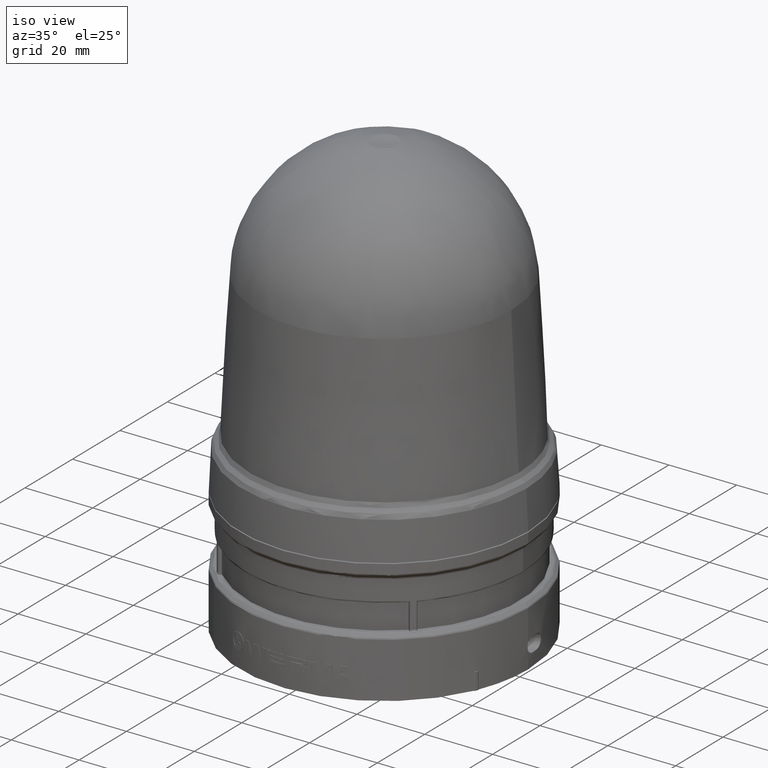
[diagram: clean part render]
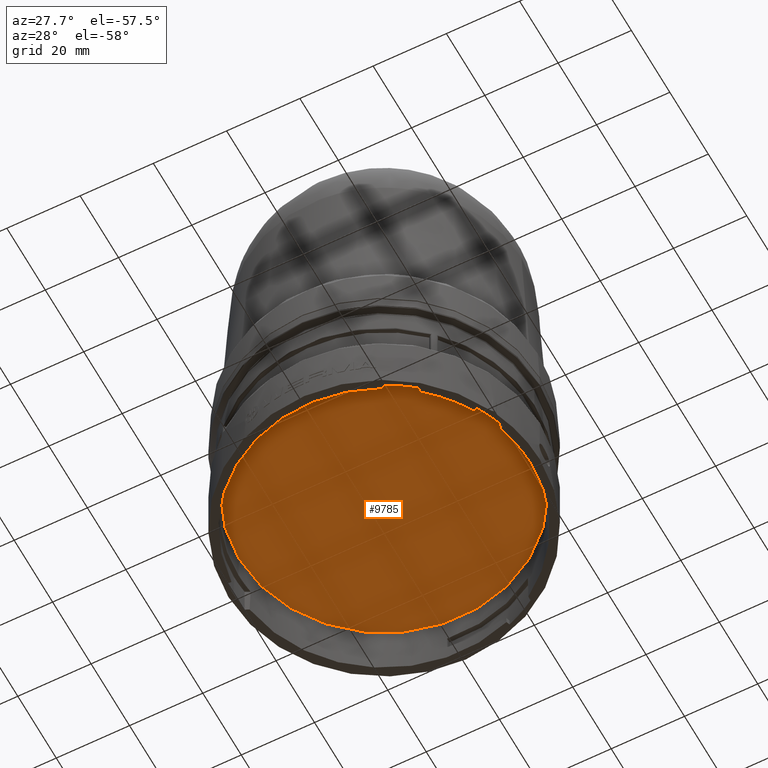
[diagram: tour spotlight — one face highlighted and labeled with its STEP entity id]
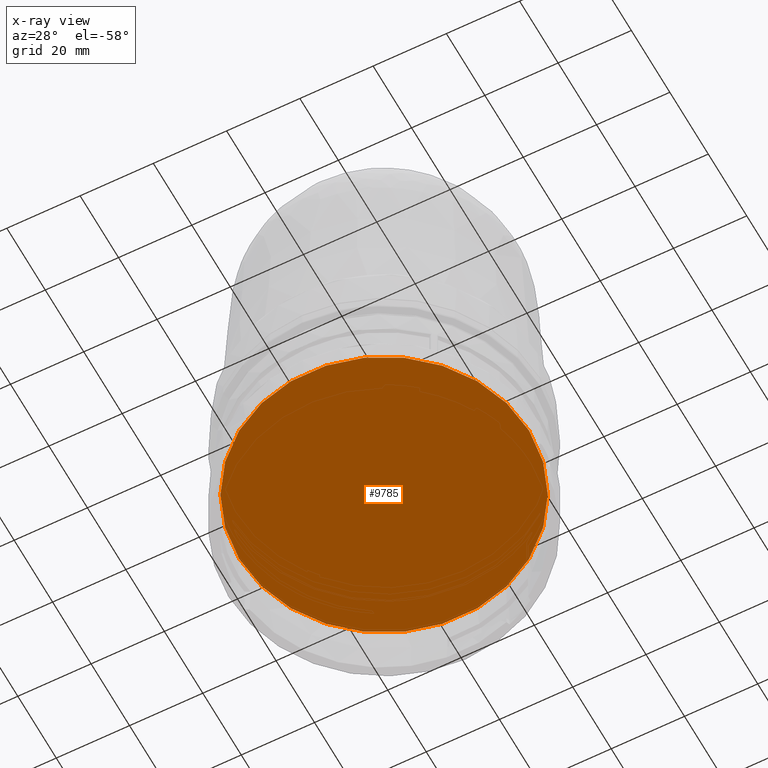
[diagram: x-ray of the same camera — body ghosted, this tour face saturated]
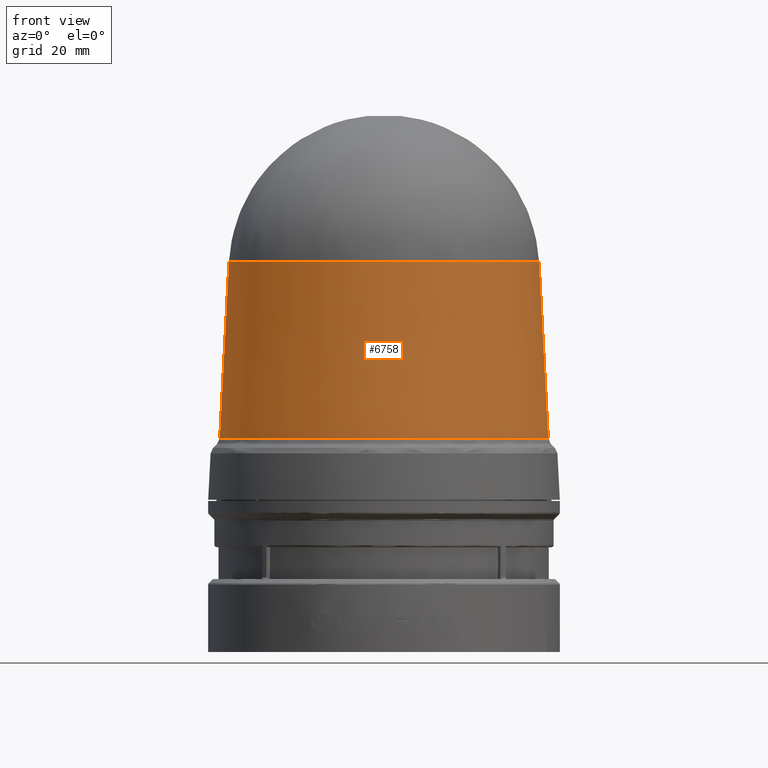
[diagram: tour spotlight — one face highlighted and labeled with its STEP entity id]
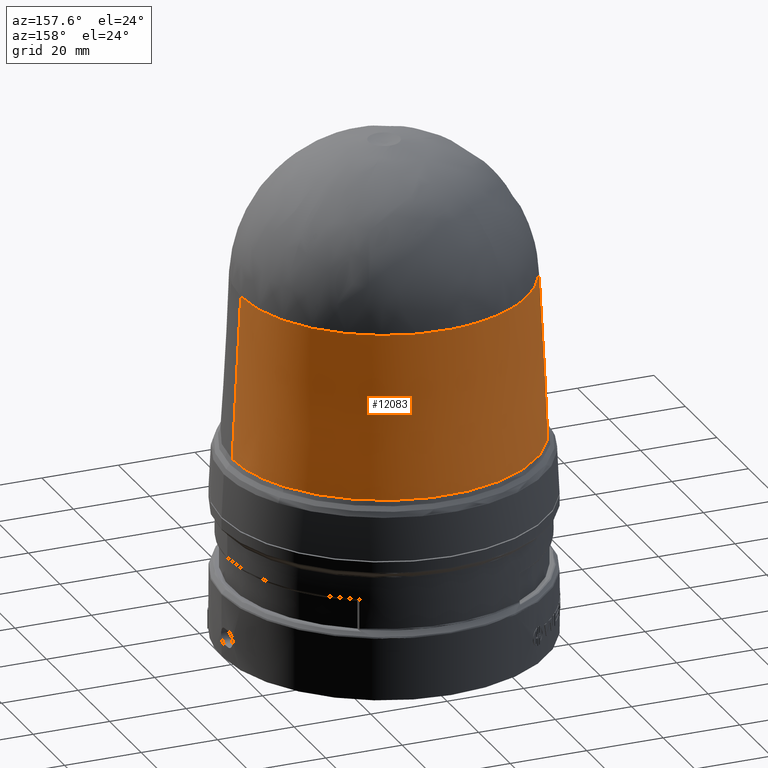
[diagram: tour spotlight — one face highlighted and labeled with its STEP entity id]
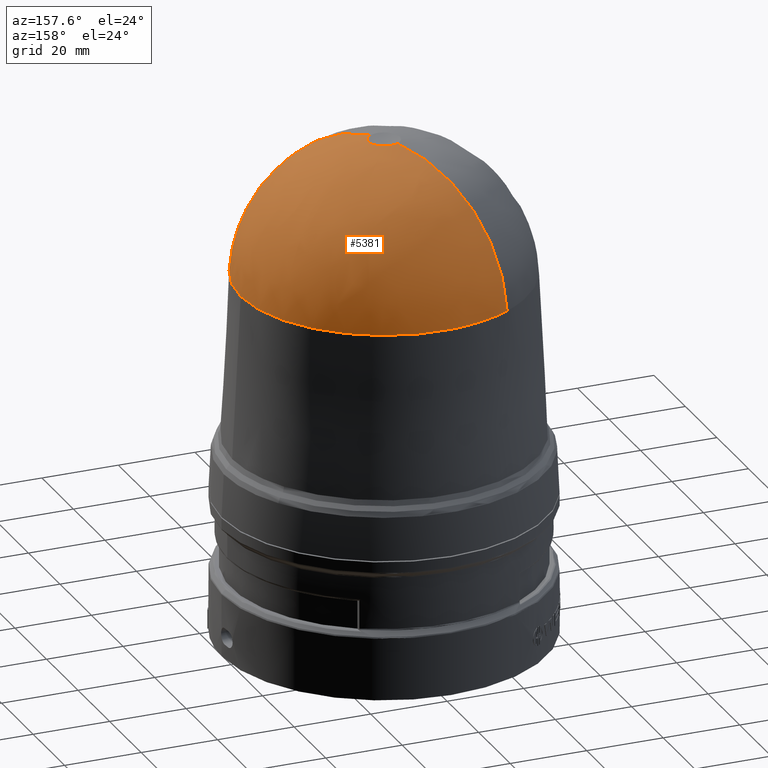
[diagram: tour spotlight — one face highlighted and labeled with its STEP entity id]
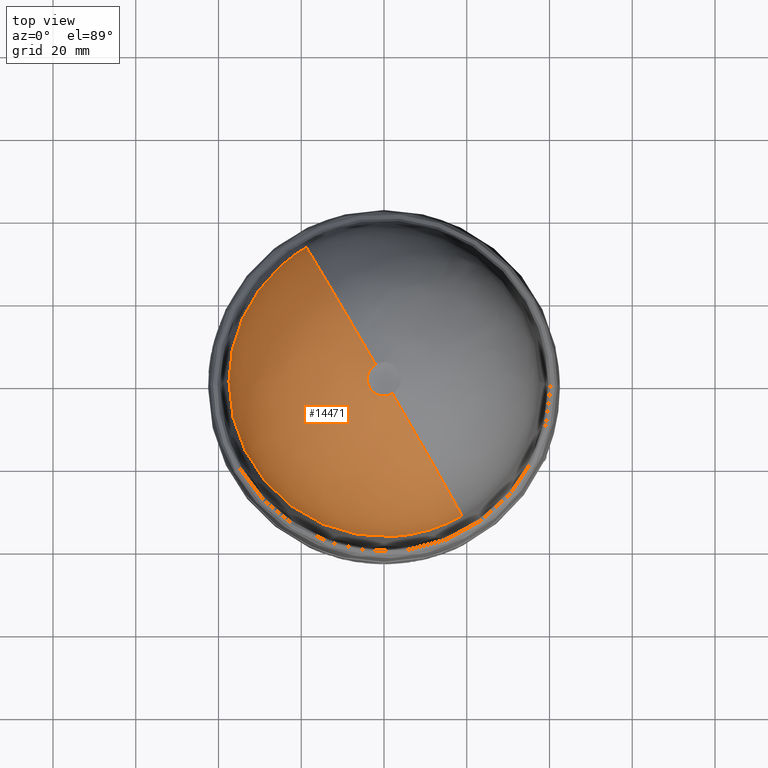
[diagram: tour spotlight — one face highlighted and labeled with its STEP entity id]
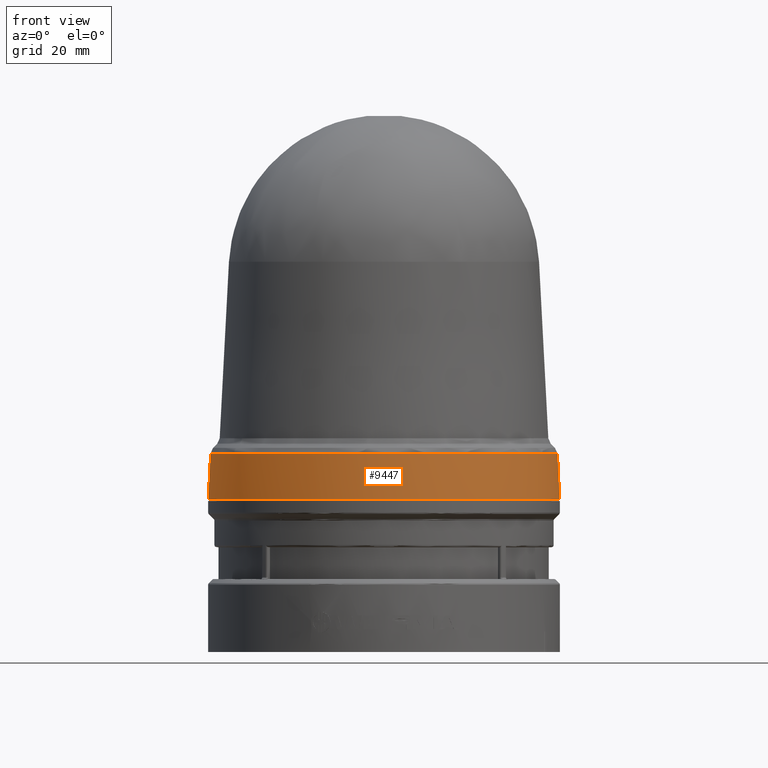
[diagram: tour spotlight — one face highlighted and labeled with its STEP entity id]
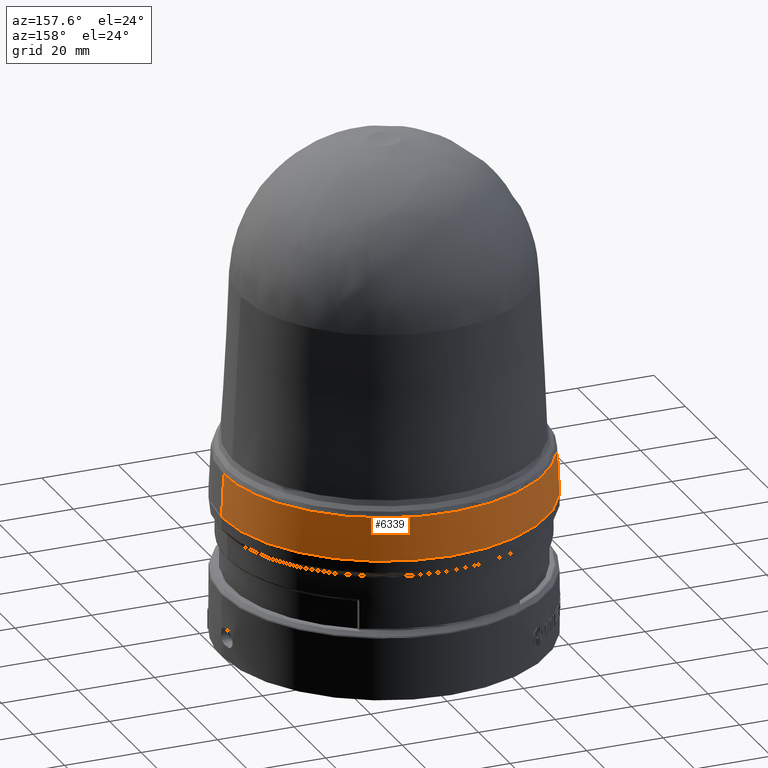
[diagram: tour spotlight — one face highlighted and labeled with its STEP entity id]
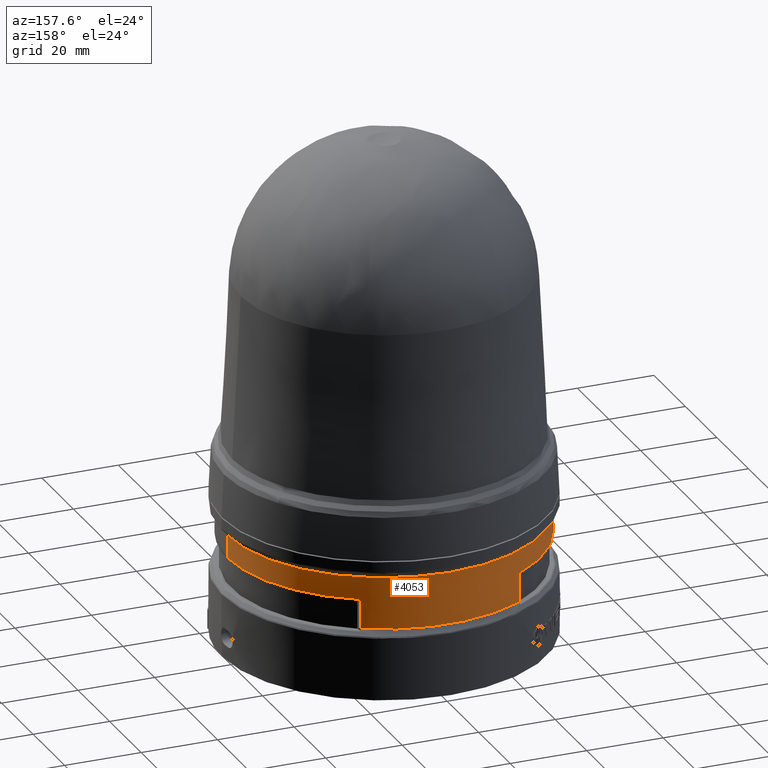
[diagram: tour spotlight — one face highlighted and labeled with its STEP entity id]
A machine part: a face-by-face anatomy tour. The part has 358 B-rep faces; the first image is the clean iso view, then the 8 largest visible faces are spotlighted one at a time (largest first), each with its STEP entity span.

Face 1 — auxiliary view, entity #9785. An x-ray twin of the same camera follows (body ghosted, this face saturated) — the face is partly hidden behind the body. In plain terms, the highlighted planar face has unit normal (0, -0, -1).
Definition (entity closure, byte-faithful):
#1344 = DIRECTION ( 'NONE',  ( 1.000000000000000000, 0.0000000000000000000, 0.0000000000000000000 ) ) ;
#2258 = EDGE_LOOP ( 'NONE', ( #14175, #6306 ) ) ;
#2262 = DIRECTION ( 'NONE',  ( 3.978616085879489650E-16, -1.210841881767389966E-31, -1.000000000000000000 ) ) ;
#2293 = DIRECTION ( 'NONE',  ( 0.0000000000000000000, 0.0000000000000000000, 1.000000000000000000 ) ) ;
#2439 = EDGE_CURVE ( 'NONE', #9675, #11944, #7553, .T. ) ;
#2452 = CARTESIAN_POINT ( 'NONE',  ( -1.558308080901299242, 1.908377003361230864E-16, 0.5905511811023621549 ) ) ;
#3549 = DIRECTION ( 'NONE',  ( 0.0000000000000000000, 0.0000000000000000000, 1.000000000000000000 ) ) ;
#3585 = CARTESIAN_POINT ( 'NONE',  ( 0.03543307086614161383, 1.338582677165354395, 0.5905511811023621549 ) ) ;
#3697 = EDGE_CURVE ( 'NONE', #11944, #9675, #6114, .T. ) ;
#6114 = CIRCLE ( 'NONE', #11616, 1.558308080901299242 ) ;
#6306 = ORIENTED_EDGE ( 'NONE', *, *, #3697, .F. ) ;
#6522 = AXIS2_PLACEMENT_3D ( 'NONE', #3585, #2262, #9466 ) ;
#7055 = CARTESIAN_POINT ( 'NONE',  ( 1.558308080901299242, 0.0000000000000000000, 0.5905511811023621549 ) ) ;
#7553 = CIRCLE ( 'NONE', #8803, 1.558308080901299242 ) ;
#8024 = CARTESIAN_POINT ( 'NONE',  ( 1.092739197465704702E-17, 0.0000000000000000000, 0.5905511811023621549 ) ) ;
#8803 = AXIS2_PLACEMENT_3D ( 'NONE', #15422, #2293, #1344 ) ;
#9466 = DIRECTION ( 'NONE',  ( -1.000000000000000000, 0.0000000000000000000, -3.978616085879489650E-16 ) ) ;
#9623 = FACE_OUTER_BOUND ( 'NONE', #2258, .T. ) ;
#9675 = VERTEX_POINT ( 'NONE', #7055 ) ;
#9785 = ADVANCED_FACE ( 'NONE', ( #9623 ), #10645, .T. ) ;
#10645 = PLANE ( 'NONE',  #6522 ) ;
#11616 = AXIS2_PLACEMENT_3D ( 'NONE', #8024, #3549, #13959 ) ;
#11944 = VERTEX_POINT ( 'NONE', #2452 ) ;
#13959 = DIRECTION ( 'NONE',  ( 1.000000000000000000, 0.0000000000000000000, 0.0000000000000000000 ) ) ;
#14175 = ORIENTED_EDGE ( 'NONE', *, *, #2439, .F. ) ;
#15422 = CARTESIAN_POINT ( 'NONE',  ( 1.092739197465704702E-17, 0.0000000000000000000, 0.5905511811023621549 ) ) ;

Face 2 — front view, entity #6758. In plain terms, the highlighted conical surface has half-angle 3 deg.
Definition (entity closure, byte-faithful):
#60 = VERTEX_POINT ( 'NONE', #8692 ) ;
#482 = DIRECTION ( 'NONE',  ( -0.0000000000000000000, -0.0000000000000000000, 1.000000000000000000 ) ) ;
#598 = CONICAL_SURFACE ( 'NONE', #10614, 1.563671779580842358, 0.05235987755983015357 ) ;
#727 = VECTOR ( 'NONE', #14472, 39.37007874015748854 ) ;
#1020 = DIRECTION ( 'NONE',  ( 0.05233595624294409832, 6.409306129323742530E-18, -0.9986295347545738332 ) ) ;
#1576 = EDGE_CURVE ( 'NONE', #11740, #6636, #11835, .T. ) ;
#1653 = DIRECTION ( 'NONE',  ( -0.0000000000000000000, 0.0000000000000000000, -1.000000000000000000 ) ) ;
#1723 = AXIS2_PLACEMENT_3D ( 'NONE', #12376, #1653, #2892 ) ;
#1724 = CARTESIAN_POINT ( 'NONE',  ( 0.0000000000000000000, 0.0000000000000000000, 2.034659038976424306 ) ) ;
#1786 = AXIS2_PLACEMENT_3D ( 'NONE', #2142, #5501, #10277 ) ;
#1838 = VERTEX_POINT ( 'NONE', #7422 ) ;
#2142 = CARTESIAN_POINT ( 'NONE',  ( 0.0000000000000000000, 0.0000000000000000000, 3.713785851024027362 ) ) ;
#2298 = CARTESIAN_POINT ( 'NONE',  ( 0.0000000000000000000, 0.0000000000000000000, 2.034659038976424306 ) ) ;
#2402 = EDGE_CURVE ( 'NONE', #15373, #11740, #6049, .T. ) ;
#2776 = VERTEX_POINT ( 'NONE', #9614 ) ;
#2892 = DIRECTION ( 'NONE',  ( -1.000000000000000000, 0.0000000000000000000, 0.0000000000000000000 ) ) ;
#3876 = VECTOR ( 'NONE', #1020, 39.37007874015748854 ) ;
#3913 = DIRECTION ( 'NONE',  ( -1.000000000000000000, 0.0000000000000000000, 0.0000000000000000000 ) ) ;
#4617 = LINE ( 'NONE', #13920, #3876 ) ;
#5086 = DIRECTION ( 'NONE',  ( -0.0000000000000000000, 0.0000000000000000000, -1.000000000000000000 ) ) ;
#5483 = AXIS2_PLACEMENT_3D ( 'NONE', #1724, #482, #6585 ) ;
#5501 = DIRECTION ( 'NONE',  ( -0.0000000000000000000, 0.0000000000000000000, -1.000000000000000000 ) ) ;
#5883 = AXIS2_PLACEMENT_3D ( 'NONE', #2298, #6134, #8486 ) ;
#6049 = CIRCLE ( 'NONE', #1786, 1.475672472226814635 ) ;
#6134 = DIRECTION ( 'NONE',  ( -0.0000000000000000000, -0.0000000000000000000, 1.000000000000000000 ) ) ;
#6399 = EDGE_LOOP ( 'NONE', ( #6577, #8781, #6740, #6853, #11423, #12673 ) ) ;
#6577 = ORIENTED_EDGE ( 'NONE', *, *, #7685, .F. ) ;
#6585 = DIRECTION ( 'NONE',  ( 0.5014125330541008285, -0.8652083400524236412, 1.048243510948274123E-15 ) ) ;
#6636 = VERTEX_POINT ( 'NONE', #14547 ) ;
#6740 = ORIENTED_EDGE ( 'NONE', *, *, #2402, .T. ) ;
#6758 = ADVANCED_FACE ( 'NONE', ( #8998 ), #598, .T. ) ;
#6853 = ORIENTED_EDGE ( 'NONE', *, *, #1576, .T. ) ;
#7422 = CARTESIAN_POINT ( 'NONE',  ( -1.352901864797958043, -0.7840446278648492973, 2.034659038976424306 ) ) ;
#7685 = EDGE_CURVE ( 'NONE', #2776, #60, #4617, .T. ) ;
#7979 = CIRCLE ( 'NONE', #1723, 1.475672472226814635 ) ;
#8486 = DIRECTION ( 'NONE',  ( 0.5014125330541039371, -0.8652083400524217538, 1.048243510948274123E-15 ) ) ;
#8692 = CARTESIAN_POINT ( 'NONE',  ( 1.563671779580842358, 1.914945639780724310E-16, 2.034659038976424306 ) ) ;
#8781 = ORIENTED_EDGE ( 'NONE', *, *, #13448, .T. ) ;
#8998 = FACE_OUTER_BOUND ( 'NONE', #6399, .T. ) ;
#9053 = EDGE_CURVE ( 'NONE', #1838, #60, #10868, .T. ) ;
#9614 = CARTESIAN_POINT ( 'NONE',  ( 1.475672472226814635, 1.861061604741577469E-16, 3.713785851024027362 ) ) ;
#10277 = DIRECTION ( 'NONE',  ( -1.000000000000000000, 0.0000000000000000000, 0.0000000000000000000 ) ) ;
#10614 = AXIS2_PLACEMENT_3D ( 'NONE', #13758, #5086, #3913 ) ;
#10809 = CARTESIAN_POINT ( 'NONE',  ( -1.563671779580842358, 0.0000000000000000000, 2.034659038976426082 ) ) ;
#10868 = CIRCLE ( 'NONE', #5883, 1.563671779580842358 ) ;
#11423 = ORIENTED_EDGE ( 'NONE', *, *, #14225, .T. ) ;
#11740 = VERTEX_POINT ( 'NONE', #15153 ) ;
#11835 = LINE ( 'NONE', #10809, #727 ) ;
#12376 = CARTESIAN_POINT ( 'NONE',  ( 0.0000000000000000000, 0.0000000000000000000, 3.713785851024027362 ) ) ;
#12673 = ORIENTED_EDGE ( 'NONE', *, *, #9053, .T. ) ;
#13448 = EDGE_CURVE ( 'NONE', #2776, #15373, #7979, .T. ) ;
#13682 = CARTESIAN_POINT ( 'NONE',  ( 0.7399206722574594997, -1.276764130156416988, 3.713785851024027362 ) ) ;
#13758 = CARTESIAN_POINT ( 'NONE',  ( 0.0000000000000000000, 0.0000000000000000000, 2.034659038976426082 ) ) ;
#13920 = CARTESIAN_POINT ( 'NONE',  ( 1.563671779580842358, 1.914945639780724310E-16, 2.034659038976426082 ) ) ;
#14225 = EDGE_CURVE ( 'NONE', #6636, #1838, #14963, .T. ) ;
#14472 = DIRECTION ( 'NONE',  ( -0.05233595624294409832, 0.0000000000000000000, -0.9986295347545738332 ) ) ;
#14547 = CARTESIAN_POINT ( 'NONE',  ( -1.563671779580842358, 0.0000000000000000000, 2.034659038976424306 ) ) ;
#14963 = CIRCLE ( 'NONE', #5483, 1.563671779580842358 ) ;
#15153 = CARTESIAN_POINT ( 'NONE',  ( -1.475672472226814635, 0.0000000000000000000, 3.713785851024027362 ) ) ;
#15373 = VERTEX_POINT ( 'NONE', #13682 ) ;

Face 3 — auxiliary view, entity #12083. In plain terms, the highlighted conical surface has half-angle 3 deg.
Definition (entity closure, byte-faithful):
#60 = VERTEX_POINT ( 'NONE', #8692 ) ;
#319 = CARTESIAN_POINT ( 'NONE',  ( -0.7399206722574594997, 1.276764130156416988, 3.713785851024027362 ) ) ;
#568 = DIRECTION ( 'NONE',  ( -0.0000000000000000000, 0.0000000000000000000, -1.000000000000000000 ) ) ;
#727 = VECTOR ( 'NONE', #14472, 39.37007874015748854 ) ;
#742 = ORIENTED_EDGE ( 'NONE', *, *, #7685, .T. ) ;
#1020 = DIRECTION ( 'NONE',  ( 0.05233595624294409832, 6.409306129323742530E-18, -0.9986295347545738332 ) ) ;
#1417 = EDGE_CURVE ( 'NONE', #60, #2387, #11973, .T. ) ;
#1576 = EDGE_CURVE ( 'NONE', #11740, #6636, #11835, .T. ) ;
#2131 = DIRECTION ( 'NONE',  ( 0.5014125330541039371, -0.8652083400524217538, 1.048243510948274123E-15 ) ) ;
#2154 = DIRECTION ( 'NONE',  ( -0.0000000000000000000, 0.0000000000000000000, -1.000000000000000000 ) ) ;
#2387 = VERTEX_POINT ( 'NONE', #14030 ) ;
#2776 = VERTEX_POINT ( 'NONE', #9614 ) ;
#3876 = VECTOR ( 'NONE', #1020, 39.37007874015748854 ) ;
#4176 = CARTESIAN_POINT ( 'NONE',  ( 0.0000000000000000000, 0.0000000000000000000, 3.713785851024027362 ) ) ;
#4617 = LINE ( 'NONE', #13920, #3876 ) ;
#4893 = ORIENTED_EDGE ( 'NONE', *, *, #1417, .T. ) ;
#5110 = CIRCLE ( 'NONE', #11620, 1.475672472226814635 ) ;
#5231 = AXIS2_PLACEMENT_3D ( 'NONE', #9174, #10266, #2131 ) ;
#5633 = CIRCLE ( 'NONE', #10640, 1.475672472226814635 ) ;
#5989 = FACE_OUTER_BOUND ( 'NONE', #6767, .T. ) ;
#6124 = CIRCLE ( 'NONE', #10634, 1.563671779580842358 ) ;
#6222 = DIRECTION ( 'NONE',  ( -0.0000000000000000000, 0.0000000000000000000, -1.000000000000000000 ) ) ;
#6291 = CARTESIAN_POINT ( 'NONE',  ( 0.0000000000000000000, 0.0000000000000000000, 2.034659038976424306 ) ) ;
#6636 = VERTEX_POINT ( 'NONE', #14547 ) ;
#6767 = EDGE_LOOP ( 'NONE', ( #8158, #9645, #742, #4893, #7367, #7147 ) ) ;
#6942 = DIRECTION ( 'NONE',  ( -1.000000000000000000, 0.0000000000000000000, 0.0000000000000000000 ) ) ;
#7147 = ORIENTED_EDGE ( 'NONE', *, *, #1576, .F. ) ;
#7367 = ORIENTED_EDGE ( 'NONE', *, *, #9251, .T. ) ;
#7520 = EDGE_CURVE ( 'NONE', #11740, #15455, #5633, .T. ) ;
#7685 = EDGE_CURVE ( 'NONE', #2776, #60, #4617, .T. ) ;
#8158 = ORIENTED_EDGE ( 'NONE', *, *, #7520, .T. ) ;
#8502 = EDGE_CURVE ( 'NONE', #15455, #2776, #5110, .T. ) ;
#8692 = CARTESIAN_POINT ( 'NONE',  ( 1.563671779580842358, 1.914945639780724310E-16, 2.034659038976424306 ) ) ;
#8879 = DIRECTION ( 'NONE',  ( -1.000000000000000000, 0.0000000000000000000, 0.0000000000000000000 ) ) ;
#9174 = CARTESIAN_POINT ( 'NONE',  ( 0.0000000000000000000, 0.0000000000000000000, 2.034659038976424306 ) ) ;
#9251 = EDGE_CURVE ( 'NONE', #2387, #6636, #6124, .T. ) ;
#9614 = CARTESIAN_POINT ( 'NONE',  ( 1.475672472226814635, 1.861061604741577469E-16, 3.713785851024027362 ) ) ;
#9645 = ORIENTED_EDGE ( 'NONE', *, *, #8502, .T. ) ;
#9809 = DIRECTION ( 'NONE',  ( 0.5014125330541039371, -0.8652083400524217538, 1.048243510948274123E-15 ) ) ;
#10035 = DIRECTION ( 'NONE',  ( -0.0000000000000000000, -0.0000000000000000000, 1.000000000000000000 ) ) ;
#10266 = DIRECTION ( 'NONE',  ( -0.0000000000000000000, -0.0000000000000000000, 1.000000000000000000 ) ) ;
#10634 = AXIS2_PLACEMENT_3D ( 'NONE', #6291, #10035, #9809 ) ;
#10640 = AXIS2_PLACEMENT_3D ( 'NONE', #4176, #2154, #6942 ) ;
#10809 = CARTESIAN_POINT ( 'NONE',  ( -1.563671779580842358, 0.0000000000000000000, 2.034659038976426082 ) ) ;
#11620 = AXIS2_PLACEMENT_3D ( 'NONE', #12462, #6222, #8879 ) ;
#11740 = VERTEX_POINT ( 'NONE', #15153 ) ;
#11835 = LINE ( 'NONE', #10809, #727 ) ;
#11973 = CIRCLE ( 'NONE', #5231, 1.563671779580842358 ) ;
#12083 = ADVANCED_FACE ( 'NONE', ( #5989 ), #13446, .T. ) ;
#12462 = CARTESIAN_POINT ( 'NONE',  ( 0.0000000000000000000, 0.0000000000000000000, 3.713785851024027362 ) ) ;
#13446 = CONICAL_SURFACE ( 'NONE', #14926, 1.563671779580842358, 0.05235987755983015357 ) ;
#13556 = DIRECTION ( 'NONE',  ( -1.000000000000000000, 0.0000000000000000000, 0.0000000000000000000 ) ) ;
#13920 = CARTESIAN_POINT ( 'NONE',  ( 1.563671779580842358, 1.914945639780724310E-16, 2.034659038976426082 ) ) ;
#14030 = CARTESIAN_POINT ( 'NONE',  ( 1.352901864797958043, 0.7840446278648494083, 2.034659038976424306 ) ) ;
#14472 = DIRECTION ( 'NONE',  ( -0.05233595624294409832, 0.0000000000000000000, -0.9986295347545738332 ) ) ;
#14547 = CARTESIAN_POINT ( 'NONE',  ( -1.563671779580842358, 0.0000000000000000000, 2.034659038976424306 ) ) ;
#14726 = CARTESIAN_POINT ( 'NONE',  ( 0.0000000000000000000, 0.0000000000000000000, 2.034659038976426082 ) ) ;
#14926 = AXIS2_PLACEMENT_3D ( 'NONE', #14726, #568, #13556 ) ;
#15153 = CARTESIAN_POINT ( 'NONE',  ( -1.475672472226814635, 0.0000000000000000000, 3.713785851024027362 ) ) ;
#15455 = VERTEX_POINT ( 'NONE', #319 ) ;

Face 4 — auxiliary view, entity #5381. In plain terms, the highlighted face is a freeform B-spline surface patch.
Definition (entity closure, byte-faithful):
#223 = CARTESIAN_POINT ( 'NONE',  ( 0.1335874368738168283, -0.08909182799345709280, 5.101524661840184827 ) ) ;
#319 = CARTESIAN_POINT ( 'NONE',  ( -0.7399206722574594997, 1.276764130156416988, 3.713785851024027362 ) ) ;
#452 = CARTESIAN_POINT ( 'NONE',  ( 0.1605735896362889548, 0.0001998208496567846211, 5.101524661840184827 ) ) ;
#613 = CIRCLE ( 'NONE', #13109, 1.477919648963614385 ) ;
#1025 = CARTESIAN_POINT ( 'NONE',  ( 0.7865240245334753633, -1.251186579525271680, 3.665631362536418081 ) ) ;
#1167 = CARTESIAN_POINT ( 'NONE',  ( -6.753429739070602219E-05, 0.1605761452657249178, 5.101524661840185715 ) ) ;
#1596 = CIRCLE ( 'NONE', #9884, 1.477919648963614385 ) ;
#1653 = DIRECTION ( 'NONE',  ( -0.0000000000000000000, 0.0000000000000000000, -1.000000000000000000 ) ) ;
#1723 = AXIS2_PLACEMENT_3D ( 'NONE', #12376, #1653, #2892 ) ;
#1960 =( BOUNDED_SURFACE ( )  B_SPLINE_SURFACE ( 3, 3, ( 
 ( #6910, #8070, #15173, #3285 ),
 ( #8230, #14005, #12840, #7065 ),
 ( #10335, #5880, #13002, #5726 ),
 ( #9166, #12759, #1025, #5560 ) ),
 .UNSPECIFIED., .F., .F., .T. ) 
 B_SPLINE_SURFACE_WITH_KNOTS ( ( 4, 4 ),
 ( 4, 4 ),
 ( 0.0000000000000000000, 1.000000000000000000 ),
 ( 0.0000000000000000000, 1.000000000000000000 ),
 .UNSPECIFIED. ) 
 GEOMETRIC_REPRESENTATION_ITEM ( )  RATIONAL_B_SPLINE_SURFACE ( (
 ( 1.000000000000000000, 0.8154240588738161932, 0.8154240588738161932, 1.000000000000000000),
 ( 0.3579707367587954270, 0.2918979511259073845, 0.2918979511259073845, 0.3579707367587954270),
 ( 0.3579707367587954270, 0.2918979511259073845, 0.2918979511259073845, 0.3579707367587954270),
 ( 1.000000000000000000, 0.8154240588738161932, 0.8154240588738161932, 1.000000000000000000) ) ) 
 REPRESENTATION_ITEM ( '' )  SURFACE ( )  );
#2190 = CARTESIAN_POINT ( 'NONE',  ( -0.07118422316027021857, 0.1439406593479357344, 5.101524661840183050 ) ) ;
#2375 = CARTESIAN_POINT ( 'NONE',  ( 0.0000000000000000000, 0.0000000000000000000, 3.632316571508826808 ) ) ;
#2565 = CARTESIAN_POINT ( 'NONE',  ( 0.1575040759130816315, -0.03123542254685786682, 5.101524661840184827 ) ) ;
#2645 = CARTESIAN_POINT ( 'NONE',  ( 0.08034199233013633590, -0.1386334749115154530, 5.101524661840183938 ) ) ;
#2776 = VERTEX_POINT ( 'NONE', #9614 ) ;
#2785 = CARTESIAN_POINT ( 'NONE',  ( 0.1439904568381328576, 0.07108043574247831231, 5.101524661840183050 ) ) ;
#2861 = CARTESIAN_POINT ( 'NONE',  ( 0.1521157557725097142, -0.05141966935592569288, 5.101524661840183050 ) ) ;
#2892 = DIRECTION ( 'NONE',  ( -1.000000000000000000, 0.0000000000000000000, 0.0000000000000000000 ) ) ;
#3204 = FACE_OUTER_BOUND ( 'NONE', #5895, .T. ) ;
#3285 = CARTESIAN_POINT ( 'NONE',  ( -0.6933348365070033381, 1.305192331271466388, 3.634820901497947343 ) ) ;
#3514 = CARTESIAN_POINT ( 'NONE',  ( -0.04158516537283163395, 0.1551015468564019562, 5.101524661840183938 ) ) ;
#3534 = CARTESIAN_POINT ( 'NONE',  ( -0.08034199233101341209, 0.1386334749110069431, 5.101524661840183938 ) ) ;
#3691 = EDGE_CURVE ( 'NONE', #13272, #15373, #613, .T. ) ;
#3719 = ORIENTED_EDGE ( 'NONE', *, *, #3691, .T. ) ;
#3743 = CARTESIAN_POINT ( 'NONE',  ( 0.08906134181568881036, 0.1336141393209111794, 5.101524661840185715 ) ) ;
#3821 = CARTESIAN_POINT ( 'NONE',  ( 0.1484564492882169129, -0.06120537906545074625, 5.101524661840184827 ) ) ;
#3822 = DIRECTION ( 'NONE',  ( -0.5014125330541038261, 0.8652083400524217538, 0.0000000000000000000 ) ) ;
#4044 = CARTESIAN_POINT ( 'NONE',  ( 0.1574694936362039110, 0.03142356822238222269, 5.101524661840184827 ) ) ;
#4761 = CARTESIAN_POINT ( 'NONE',  ( 0.06142297409386508061, 0.1483600975610369910, 5.101524661840183938 ) ) ;
#5110 = CIRCLE ( 'NONE', #11620, 1.475672472226814635 ) ;
#5224 = CARTESIAN_POINT ( 'NONE',  ( 0.09787007582820322904, -0.1273040767253774963, 5.101524661840188379 ) ) ;
#5381 = ADVANCED_FACE ( 'NONE', ( #3204 ), #1960, .T. ) ;
#5560 = CARTESIAN_POINT ( 'NONE',  ( 0.7877475990843612053, -1.250477483708068549, 3.634820901497947787 ) ) ;
#5726 = CARTESIAN_POINT ( 'NONE',  ( 3.112428229567200777, 0.2142247833972087956, 3.760850638755021791 ) ) ;
#5880 = CARTESIAN_POINT ( 'NONE',  ( 2.059201229991057591, -0.3961498434891331244, 6.435578721853982387 ) ) ;
#5895 = EDGE_LOOP ( 'NONE', ( #7677, #12162, #9818, #3719, #5999 ) ) ;
#5945 = CARTESIAN_POINT ( 'NONE',  ( 0.05143388742574824674, 0.1521119074181326858, 5.101524661840184827 ) ) ;
#5999 = ORIENTED_EDGE ( 'NONE', *, *, #13448, .F. ) ;
#6222 = DIRECTION ( 'NONE',  ( -0.0000000000000000000, 0.0000000000000000000, -1.000000000000000000 ) ) ;
#6328 = CARTESIAN_POINT ( 'NONE',  ( 0.1209044632210998088, -0.1056648847959882204, 5.101524661840183938 ) ) ;
#6910 = CARTESIAN_POINT ( 'NONE',  ( -0.7405412177957145792, 1.277834907489748595, 3.686934725441727512 ) ) ;
#7058 = CARTESIAN_POINT ( 'NONE',  ( -0.03135404978745478383, 0.1574798268548385782, 5.101524661840184827 ) ) ;
#7065 = CARTESIAN_POINT ( 'NONE',  ( 1.733281571750370453, 2.594000141684456029, 3.760850638755021791 ) ) ;
#7130 = CARTESIAN_POINT ( 'NONE',  ( -0.01066355502051519535, 0.1602162941108942751, 5.101524661840185715 ) ) ;
#7677 = ORIENTED_EDGE ( 'NONE', *, *, #8502, .F. ) ;
#7808 = EDGE_CURVE ( 'NONE', #15455, #12336, #1596, .T. ) ;
#7979 = CIRCLE ( 'NONE', #1723, 1.475672472226814635 ) ;
#8070 = CARTESIAN_POINT ( 'NONE',  ( -0.7138556837570813052, 1.293299923947405450, 3.686934725441748828 ) ) ;
#8230 = CARTESIAN_POINT ( 'NONE',  ( -0.6895733289100893781, 1.189887679142652921, 6.435578721852891704 ) ) ;
#8377 = CARTESIAN_POINT ( 'NONE',  ( 0.0000000000000000000, 0.0000000000000000000, 3.632316571508826808 ) ) ;
#8502 = EDGE_CURVE ( 'NONE', #15455, #2776, #5110, .T. ) ;
#8604 = CARTESIAN_POINT ( 'NONE',  ( 0.1391480548240751347, -0.08014508469324004014, 5.101524661840184827 ) ) ;
#8682 = CARTESIAN_POINT ( 'NONE',  ( 0.1136834327266383060, -0.1134061586379106201, 5.101524661840188379 ) ) ;
#8756 = CARTESIAN_POINT ( 'NONE',  ( 0.1602221060158062205, 0.01062820820876753114, 5.101524661840184827 ) ) ;
#8879 = DIRECTION ( 'NONE',  ( -1.000000000000000000, 0.0000000000000000000, 0.0000000000000000000 ) ) ;
#9166 = CARTESIAN_POINT ( 'NONE',  ( 0.7405412177956492981, -1.277834907489786342, 3.686934725441727068 ) ) ;
#9396 = CARTESIAN_POINT ( 'NONE',  ( -0.06160064022453402843, 0.1482942242309589764, 5.101524661840185715 ) ) ;
#9547 = CARTESIAN_POINT ( 'NONE',  ( 0.02092373244159112175, 0.1592070991193333118, 5.101524661840183938 ) ) ;
#9614 = CARTESIAN_POINT ( 'NONE',  ( 1.475672472226814635, 1.861061604741577469E-16, 3.713785851024027362 ) ) ;
#9627 = DIRECTION ( 'NONE',  ( 0.8652083400524217538, 0.5014125330541039371, 0.0000000000000000000 ) ) ;
#9697 = CARTESIAN_POINT ( 'NONE',  ( 0.1334117384435282438, 0.08936995049383432421, 5.101524661840184827 ) ) ;
#9775 = CARTESIAN_POINT ( 'NONE',  ( 0.1135021592255398976, 0.1135792108514889209, 5.101524661840184827 ) ) ;
#9818 = ORIENTED_EDGE ( 'NONE', *, *, #10660, .T. ) ;
#9884 = AXIS2_PLACEMENT_3D ( 'NONE', #8377, #9627, #3822 ) ;
#10335 = CARTESIAN_POINT ( 'NONE',  ( 0.6895733289067419447, -1.189887679144593147, 6.435578721852889927 ) ) ;
#10529 = DIRECTION ( 'NONE',  ( 0.8652083400524217538, 0.5014125330541039371, 0.0000000000000000000 ) ) ;
#10660 = EDGE_CURVE ( 'NONE', #12336, #13272, #15313, .T. ) ;
#11620 = AXIS2_PLACEMENT_3D ( 'NONE', #12462, #6222, #8879 ) ;
#11703 = DIRECTION ( 'NONE',  ( -0.5014125330541038261, 0.8652083400524217538, 0.0000000000000000000 ) ) ;
#11820 = CARTESIAN_POINT ( 'NONE',  ( 0.03122271294465147479, 0.1575075215679651863, 5.101524661840184827 ) ) ;
#12123 = CARTESIAN_POINT ( 'NONE',  ( 0.1272752717508936759, 0.09789781656014066857, 5.101524661840184827 ) ) ;
#12162 = ORIENTED_EDGE ( 'NONE', *, *, #7808, .T. ) ;
#12230 = CARTESIAN_POINT ( 'NONE',  ( 0.08034199233013633590, -0.1386334749115154530, 5.101524661840183938 ) ) ;
#12336 = VERTEX_POINT ( 'NONE', #3534 ) ;
#12346 = CARTESIAN_POINT ( 'NONE',  ( 0.1592315060689647455, -0.02071823091058950031, 5.101524661840184827 ) ) ;
#12376 = CARTESIAN_POINT ( 'NONE',  ( 0.0000000000000000000, 0.0000000000000000000, 3.713785851024027362 ) ) ;
#12462 = CARTESIAN_POINT ( 'NONE',  ( 0.0000000000000000000, 0.0000000000000000000, 3.713785851024027362 ) ) ;
#12759 = CARTESIAN_POINT ( 'NONE',  ( 0.7672267518342824610, -1.262369891032129710, 3.686934725441747052 ) ) ;
#12840 = CARTESIAN_POINT ( 'NONE',  ( 1.670481935006218999, 2.557605988418602205, 5.342189315450341702 ) ) ;
#13002 = CARTESIAN_POINT ( 'NONE',  ( 3.049628592823049988, 0.1778306301313553328, 5.342189315450341702 ) ) ;
#13109 = AXIS2_PLACEMENT_3D ( 'NONE', #2375, #10529, #11703 ) ;
#13272 = VERTEX_POINT ( 'NONE', #12230 ) ;
#13439 = CARTESIAN_POINT ( 'NONE',  ( 0.08938796233181590944, -0.1333910812330961759, 5.101524661840183938 ) ) ;
#13448 = EDGE_CURVE ( 'NONE', #2776, #15373, #7979, .T. ) ;
#13514 = CARTESIAN_POINT ( 'NONE',  ( 0.08019060339995777442, 0.1391149431988049079, 5.101524661840184827 ) ) ;
#13682 = CARTESIAN_POINT ( 'NONE',  ( 0.7399206722574594997, -1.276764130156416988, 3.713785851024027362 ) ) ;
#14005 = CARTESIAN_POINT ( 'NONE',  ( 0.6800545721742269345, 1.983625514798113665, 6.435578721853983275 ) ) ;
#14455 = CARTESIAN_POINT ( 'NONE',  ( 0.1057602978150168072, 0.1208280606422107994, 5.101524661840183050 ) ) ;
#14534 = CARTESIAN_POINT ( 'NONE',  ( 0.1483021989910519312, 0.06155950366498146725, 5.101524661840184827 ) ) ;
#14685 = CARTESIAN_POINT ( 'NONE',  ( 0.1550374797612889266, 0.04179108261732834145, 5.101524661840184827 ) ) ;
#15173 = CARTESIAN_POINT ( 'NONE',  ( -0.6945584110578889581, 1.304483235454263701, 3.665631362536418081 ) ) ;
#15313 = B_SPLINE_CURVE_WITH_KNOTS ( 'NONE', 3,
 ( #15323, #2190, #9396, #3514, #7058, #7130, #1167, #9547, #11820, #5945, #4761, #13514, #3743, #14455, #9775, #12123, #9697, #2785, #14534, #14685, #4044, #8756, #452, #12346, #2565, #2861, #3821, #8604, #223, #6328, #8682, #5224, #13439, #2645 ),
 .UNSPECIFIED., .F., .F.,
 ( 4, 2, 2, 2, 2, 2, 2, 2, 2, 2, 2, 2, 2, 2, 2, 2, 4 ),
 ( 0.0000000000000000000, 0.0008020714788038147509, 0.001604142957607629502, 0.002406214436411444578, 0.003208285915215259871, 0.004010357394019075164, 0.004812428872822890023, 0.005614500351626704883, 0.006416571830430519742, 0.007218643309234334601, 0.008020714788038148593, 0.008822786266841964320, 0.009624857745645778312, 0.01042692922444959404, 0.01122900070325340803, 0.01203107218205722202, 0.01283314366086103601 ),
 .UNSPECIFIED. ) ;
#15323 = CARTESIAN_POINT ( 'NONE',  ( -0.08034199233101341209, 0.1386334749110069431, 5.101524661840183938 ) ) ;
#15373 = VERTEX_POINT ( 'NONE', #13682 ) ;
#15455 = VERTEX_POINT ( 'NONE', #319 ) ;

Face 5 — top view, entity #14471. In plain terms, the highlighted face is a freeform B-spline surface patch.
Definition (entity closure, byte-faithful):
#319 = CARTESIAN_POINT ( 'NONE',  ( -0.7399206722574594997, 1.276764130156416988, 3.713785851024027362 ) ) ;
#420 = CARTESIAN_POINT ( 'NONE',  ( -0.1336831500416971463, 0.08895627555986253265, 5.101524661840184827 ) ) ;
#613 = CIRCLE ( 'NONE', #13109, 1.477919648963614385 ) ;
#650 = CARTESIAN_POINT ( 'NONE',  ( 0.06157981625540887016, -0.1482955642230253668, 5.101524661840185715 ) ) ;
#1244 = CARTESIAN_POINT ( 'NONE',  ( -0.7672267518342998915, 1.262369891032119495, 3.686934725441726624 ) ) ;
#1561 = CARTESIAN_POINT ( 'NONE',  ( 0.7138556837570638747, -1.293299923947416108, 3.686934725441728400 ) ) ;
#1592 = CARTESIAN_POINT ( 'NONE',  ( -0.1575338090665000801, 0.03108798525731183357, 5.101524661840184827 ) ) ;
#1596 = CIRCLE ( 'NONE', #9884, 1.477919648963614385 ) ;
#1786 = AXIS2_PLACEMENT_3D ( 'NONE', #2142, #5501, #10277 ) ;
#1811 = CARTESIAN_POINT ( 'NONE',  ( -0.1550464404826773224, -0.04178371007958330691, 5.101524661840183938 ) ) ;
#1892 = CARTESIAN_POINT ( 'NONE',  ( -0.1484177440268931447, 0.06128555462334484005, 5.101524661840184827 ) ) ;
#2142 = CARTESIAN_POINT ( 'NONE',  ( 0.0000000000000000000, 0.0000000000000000000, 3.713785851024027362 ) ) ;
#2154 = DIRECTION ( 'NONE',  ( -0.0000000000000000000, 0.0000000000000000000, -1.000000000000000000 ) ) ;
#2375 = CARTESIAN_POINT ( 'NONE',  ( 0.0000000000000000000, 0.0000000000000000000, 3.632316571508826808 ) ) ;
#2402 = EDGE_CURVE ( 'NONE', #15373, #11740, #6049, .T. ) ;
#2416 = CARTESIAN_POINT ( 'NONE',  ( -0.7405412177956818276, 1.277834907489767469, 3.686934725441727068 ) ) ;
#2725 = CARTESIAN_POINT ( 'NONE',  ( -0.6800545721751320993, -1.983625514798637912, 6.435578721852891704 ) ) ;
#3057 = CARTESIAN_POINT ( 'NONE',  ( -0.1209262831881366268, 0.1056467585913344748, 5.101524661840184827 ) ) ;
#3534 = CARTESIAN_POINT ( 'NONE',  ( -0.08034199233101341209, 0.1386334749110069431, 5.101524661840183938 ) ) ;
#3674 = CARTESIAN_POINT ( 'NONE',  ( -2.059201229991962645, 0.3961498434886086550, 6.435578721852891704 ) ) ;
#3691 = EDGE_CURVE ( 'NONE', #13272, #15373, #613, .T. ) ;
#3701 = B_SPLINE_CURVE_WITH_KNOTS ( 'NONE', 3,
 ( #9967, #12615, #650, #5265, #9099, #8946, #7627, #11147, #12460, #5497, #5190, #12392, #4237, #8801, #10042, #12316, #5418, #4089, #7694, #1811, #13865, #10124, #8877, #10196, #1592, #7848, #1892, #14879, #420, #3057, #6678, #6518, #6374, #11293 ),
 .UNSPECIFIED., .F., .F.,
 ( 4, 2, 2, 2, 2, 2, 2, 2, 2, 2, 2, 2, 2, 2, 2, 2, 4 ),
 ( 0.01283314366086103601, 0.01363539618070178615, 0.01443764870054253628, 0.01523990122038328641, 0.01604215374022403481, 0.01684440626006478495, 0.01764665877990553508, 0.01844891129974628521, 0.01925116381958703535, 0.02005341633942778548, 0.02085566885926853561, 0.02165792137910928228, 0.02246017389895003241, 0.02326242641879078601, 0.02406467893863153615, 0.02486693145847228628, 0.02566918397831303641 ),
 .UNSPECIFIED. ) ;
#3707 = ORIENTED_EDGE ( 'NONE', *, *, #7808, .F. ) ;
#3822 = DIRECTION ( 'NONE',  ( -0.5014125330541038261, 0.8652083400524217538, 0.0000000000000000000 ) ) ;
#4089 = CARTESIAN_POINT ( 'NONE',  ( -0.1438989291483335764, -0.07124882448123946721, 5.101524661840185715 ) ) ;
#4176 = CARTESIAN_POINT ( 'NONE',  ( 0.0000000000000000000, 0.0000000000000000000, 3.713785851024027362 ) ) ;
#4187 = ORIENTED_EDGE ( 'NONE', *, *, #3691, .F. ) ;
#4237 = CARTESIAN_POINT ( 'NONE',  ( -0.08905889135966937875, -0.1336142990331098956, 5.101524661840184827 ) ) ;
#4770 = CARTESIAN_POINT ( 'NONE',  ( -1.670481935006249419, -2.557605988418618193, 5.342189315449469511 ) ) ;
#5190 = CARTESIAN_POINT ( 'NONE',  ( -0.06126492993320457187, -0.1484241428440032373, 5.101524661840184827 ) ) ;
#5265 = CARTESIAN_POINT ( 'NONE',  ( 0.04176292566166903836, -0.1550467870626581479, 5.101524661840185715 ) ) ;
#5418 = CARTESIAN_POINT ( 'NONE',  ( -0.1334249428437103702, -0.08933689846389457345, 5.101524661840185715 ) ) ;
#5497 = CARTESIAN_POINT ( 'NONE',  ( -0.05147652696170449543, -0.1521056000630749139, 5.101524661840183050 ) ) ;
#5501 = DIRECTION ( 'NONE',  ( -0.0000000000000000000, 0.0000000000000000000, -1.000000000000000000 ) ) ;
#5633 = CIRCLE ( 'NONE', #10640, 1.475672472226814635 ) ;
#6049 = CIRCLE ( 'NONE', #1786, 1.475672472226814635 ) ;
#6374 = CARTESIAN_POINT ( 'NONE',  ( -0.08950182856444433011, 0.1333250925531959119, 5.101524661840183938 ) ) ;
#6429 = ORIENTED_EDGE ( 'NONE', *, *, #12128, .T. ) ;
#6518 = CARTESIAN_POINT ( 'NONE',  ( -0.09798764677983690108, 0.1272065334651069357, 5.101524661840183938 ) ) ;
#6678 = CARTESIAN_POINT ( 'NONE',  ( -0.1136663751766088526, 0.1134153262653238708, 5.101524661840184827 ) ) ;
#6743 = ORIENTED_EDGE ( 'NONE', *, *, #7520, .F. ) ;
#6942 = DIRECTION ( 'NONE',  ( -1.000000000000000000, 0.0000000000000000000, 0.0000000000000000000 ) ) ;
#7207 = CARTESIAN_POINT ( 'NONE',  ( 0.6933348365070025610, -1.305192331271466832, 3.634820901497947787 ) ) ;
#7369 = CARTESIAN_POINT ( 'NONE',  ( -0.7877475990843608722, 1.250477483708068549, 3.634820901497947787 ) ) ;
#7445 = CARTESIAN_POINT ( 'NONE',  ( -1.733281571750371119, -2.594000141684454697, 3.760850638755033337 ) ) ;
#7518 = CARTESIAN_POINT ( 'NONE',  ( 0.6895733289084193807, -1.189887679143620813, 6.435578721852891704 ) ) ;
#7520 = EDGE_CURVE ( 'NONE', #11740, #15455, #5633, .T. ) ;
#7627 = CARTESIAN_POINT ( 'NONE',  ( 0.0001488607454436331257, -0.1605709467311373095, 5.101524661840183938 ) ) ;
#7694 = CARTESIAN_POINT ( 'NONE',  ( -0.1482330953615046965, -0.06174323099668610482, 5.101524661840184827 ) ) ;
#7808 = EDGE_CURVE ( 'NONE', #15455, #12336, #1596, .T. ) ;
#7848 = CARTESIAN_POINT ( 'NONE',  ( -0.1521589415894417929, 0.05129347249641211942, 5.101524661840185715 ) ) ;
#8376 =( BOUNDED_SURFACE ( )  B_SPLINE_SURFACE ( 3, 3, ( 
 ( #7369, #12048, #1244, #2416 ),
 ( #10956, #8535, #3674, #12131 ),
 ( #7445, #4770, #2725, #7518 ),
 ( #7207, #12284, #1561, #14464 ) ),
 .UNSPECIFIED., .F., .F., .T. ) 
 B_SPLINE_SURFACE_WITH_KNOTS ( ( 4, 4 ),
 ( 4, 4 ),
 ( 0.0000000000000000000, 1.000000000000000000 ),
 ( 0.0000000000000000000, 1.000000000000000000 ),
 .UNSPECIFIED. ) 
 GEOMETRIC_REPRESENTATION_ITEM ( )  RATIONAL_B_SPLINE_SURFACE ( (
 ( 1.000000000000000000, 0.8154240588739757323, 0.8154240588739757323, 1.000000000000000000),
 ( 0.3579707367587954270, 0.2918979511259644499, 0.2918979511259644499, 0.3579707367587954270),
 ( 0.3579707367587954270, 0.2918979511259644499, 0.2918979511259644499, 0.3579707367587954270),
 ( 1.000000000000000000, 0.8154240588739757323, 0.8154240588739757323, 1.000000000000000000) ) ) 
 REPRESENTATION_ITEM ( '' )  SURFACE ( )  );
#8377 = CARTESIAN_POINT ( 'NONE',  ( 0.0000000000000000000, 0.0000000000000000000, 3.632316571508826808 ) ) ;
#8535 = CARTESIAN_POINT ( 'NONE',  ( -3.049628592823079298, -0.1778306301313720139, 5.342189315449469511 ) ) ;
#8801 = CARTESIAN_POINT ( 'NONE',  ( -0.1057297434173035261, -0.1208531687347661615, 5.101524661840184827 ) ) ;
#8877 = CARTESIAN_POINT ( 'NONE',  ( -0.1605772038700667426, -0.0002488313327273122041, 5.101524661840184827 ) ) ;
#8946 = CARTESIAN_POINT ( 'NONE',  ( 0.01076457030227429522, -0.1602144543421792910, 5.101524661840184827 ) ) ;
#9099 = CARTESIAN_POINT ( 'NONE',  ( 0.03160112654752501166, -0.1574354348769112788, 5.101524661840184827 ) ) ;
#9627 = DIRECTION ( 'NONE',  ( 0.8652083400524217538, 0.5014125330541039371, 0.0000000000000000000 ) ) ;
#9834 = EDGE_LOOP ( 'NONE', ( #3707, #6743, #14981, #4187, #6429 ) ) ;
#9884 = AXIS2_PLACEMENT_3D ( 'NONE', #8377, #9627, #3822 ) ;
#9967 = CARTESIAN_POINT ( 'NONE',  ( 0.08034199233013633590, -0.1386334749115154530, 5.101524661840183938 ) ) ;
#10042 = CARTESIAN_POINT ( 'NONE',  ( -0.1133565944164268147, -0.1137283309703485540, 5.101524661840184827 ) ) ;
#10124 = CARTESIAN_POINT ( 'NONE',  ( -0.1602062245625974768, -0.01081503525200656554, 5.101524661840183938 ) ) ;
#10196 = CARTESIAN_POINT ( 'NONE',  ( -0.1592269783091486146, 0.02078147488266937279, 5.101524661840183938 ) ) ;
#10277 = DIRECTION ( 'NONE',  ( -1.000000000000000000, 0.0000000000000000000, 0.0000000000000000000 ) ) ;
#10529 = DIRECTION ( 'NONE',  ( 0.8652083400524217538, 0.5014125330541039371, 0.0000000000000000000 ) ) ;
#10640 = AXIS2_PLACEMENT_3D ( 'NONE', #4176, #2154, #6942 ) ;
#10956 = CARTESIAN_POINT ( 'NONE',  ( -3.112428229567200777, -0.2142247833972084903, 3.760850638755033337 ) ) ;
#11147 = CARTESIAN_POINT ( 'NONE',  ( -0.02068643778942758429, -0.1592329186608077429, 5.101524661840182162 ) ) ;
#11293 = CARTESIAN_POINT ( 'NONE',  ( -0.08034199233101341209, 0.1386334749110069431, 5.101524661840183938 ) ) ;
#11703 = DIRECTION ( 'NONE',  ( -0.5014125330541038261, 0.8652083400524217538, 0.0000000000000000000 ) ) ;
#11740 = VERTEX_POINT ( 'NONE', #15153 ) ;
#12048 = CARTESIAN_POINT ( 'NONE',  ( -0.7865240245334756963, 1.251186579525271014, 3.665631362536401650 ) ) ;
#12128 = EDGE_CURVE ( 'NONE', #13272, #12336, #3701, .T. ) ;
#12131 = CARTESIAN_POINT ( 'NONE',  ( -0.6895733289084119422, 1.189887679143625476, 6.435578721852889927 ) ) ;
#12230 = CARTESIAN_POINT ( 'NONE',  ( 0.08034199233013633590, -0.1386334749115154530, 5.101524661840183938 ) ) ;
#12284 = CARTESIAN_POINT ( 'NONE',  ( 0.6945584110578876258, -1.304483235454263923, 3.665631362536401650 ) ) ;
#12316 = CARTESIAN_POINT ( 'NONE',  ( -0.1272011692338987365, -0.09799853727745372334, 5.101524661840185715 ) ) ;
#12336 = VERTEX_POINT ( 'NONE', #3534 ) ;
#12392 = CARTESIAN_POINT ( 'NONE',  ( -0.08001056825736400924, -0.1392171928528629643, 5.101524661840185715 ) ) ;
#12460 = CARTESIAN_POINT ( 'NONE',  ( -0.03103599977269774074, -0.1575522551939396443, 5.101524661840183938 ) ) ;
#12615 = CARTESIAN_POINT ( 'NONE',  ( 0.07129398050072480175, -0.1438770518864538883, 5.101524661840185715 ) ) ;
#13109 = AXIS2_PLACEMENT_3D ( 'NONE', #2375, #10529, #11703 ) ;
#13272 = VERTEX_POINT ( 'NONE', #12230 ) ;
#13451 = FACE_OUTER_BOUND ( 'NONE', #9834, .T. ) ;
#13682 = CARTESIAN_POINT ( 'NONE',  ( 0.7399206722574594997, -1.276764130156416988, 3.713785851024027362 ) ) ;
#13865 = CARTESIAN_POINT ( 'NONE',  ( -0.1574496870032410234, -0.03150548267659118717, 5.101524661840184827 ) ) ;
#14464 = CARTESIAN_POINT ( 'NONE',  ( 0.7405412177956823827, -1.277834907489767913, 3.686934725441727512 ) ) ;
#14471 = ADVANCED_FACE ( 'NONE', ( #13451 ), #8376, .T. ) ;
#14879 = CARTESIAN_POINT ( 'NONE',  ( -0.1391782879145425644, 0.08008214607951039121, 5.101524661840183938 ) ) ;
#14981 = ORIENTED_EDGE ( 'NONE', *, *, #2402, .F. ) ;
#15153 = CARTESIAN_POINT ( 'NONE',  ( -1.475672472226814635, 0.0000000000000000000, 3.713785851024027362 ) ) ;
#15373 = VERTEX_POINT ( 'NONE', #13682 ) ;
#15455 = VERTEX_POINT ( 'NONE', #319 ) ;

Face 6 — front view, entity #9447. In plain terms, the highlighted conical surface has half-angle 3 deg.
Definition (entity closure, byte-faithful):
#359 = VERTEX_POINT ( 'NONE', #13994 ) ;
#712 = FACE_OUTER_BOUND ( 'NONE', #7502, .T. ) ;
#769 = CONICAL_SURFACE ( 'NONE', #2020, 1.673228346456693272, 0.05235987755983057684 ) ;
#1207 = CARTESIAN_POINT ( 'NONE',  ( 0.0000000000000000000, 0.0000000000000000000, 1.448818897637792480 ) ) ;
#1353 = CIRCLE ( 'NONE', #10857, 1.673228346456693272 ) ;
#1632 = DIRECTION ( 'NONE',  ( -0.0000000000000000000, -0.0000000000000000000, 1.000000000000000000 ) ) ;
#1697 = CARTESIAN_POINT ( 'NONE',  ( -1.427637581207633843, -0.8273560745301903330, 1.891075750967208702 ) ) ;
#1833 = CARTESIAN_POINT ( 'NONE',  ( -1.673228346456693272, 0.0000000000000000000, 1.448818897637792480 ) ) ;
#1889 = CARTESIAN_POINT ( 'NONE',  ( -1.673228346456693272, 0.0000000000000000000, 1.448818897637792480 ) ) ;
#2020 = AXIS2_PLACEMENT_3D ( 'NONE', #11601, #7761, #12525 ) ;
#2269 = VERTEX_POINT ( 'NONE', #5749 ) ;
#2832 = CIRCLE ( 'NONE', #13127, 1.650050646900994122 ) ;
#3250 = ORIENTED_EDGE ( 'NONE', *, *, #15123, .T. ) ;
#4645 = VERTEX_POINT ( 'NONE', #1697 ) ;
#5749 = CARTESIAN_POINT ( 'NONE',  ( -1.650050646900993900, 0.0000000000000000000, 1.891075750967208702 ) ) ;
#5970 = CARTESIAN_POINT ( 'NONE',  ( 1.650050646900993900, 2.034921490944564712E-16, 1.891075750967208702 ) ) ;
#5976 = ORIENTED_EDGE ( 'NONE', *, *, #8383, .T. ) ;
#6927 = CARTESIAN_POINT ( 'NONE',  ( 1.673228346456693272, 2.049113738730808245E-16, 1.448818897637792480 ) ) ;
#6955 = ORIENTED_EDGE ( 'NONE', *, *, #11520, .F. ) ;
#7370 = VECTOR ( 'NONE', #9263, 39.37007874015748854 ) ;
#7502 = EDGE_LOOP ( 'NONE', ( #12893, #9030, #6955, #3250, #5976 ) ) ;
#7599 = EDGE_CURVE ( 'NONE', #4645, #13338, #2832, .T. ) ;
#7761 = DIRECTION ( 'NONE',  ( 0.0000000000000000000, 0.0000000000000000000, -1.000000000000000000 ) ) ;
#8383 = EDGE_CURVE ( 'NONE', #12813, #359, #1353, .T. ) ;
#8577 = EDGE_CURVE ( 'NONE', #13338, #359, #15029, .T. ) ;
#9000 = DIRECTION ( 'NONE',  ( -0.8652083400524217538, -0.5014125330541039371, 0.0000000000000000000 ) ) ;
#9020 = LINE ( 'NONE', #1889, #10470 ) ;
#9030 = ORIENTED_EDGE ( 'NONE', *, *, #7599, .F. ) ;
#9263 = DIRECTION ( 'NONE',  ( 0.05233595624294452853, 6.409306129323794915E-18, -0.9986295347545738332 ) ) ;
#9447 = ADVANCED_FACE ( 'NONE', ( #712 ), #769, .T. ) ;
#9943 = CARTESIAN_POINT ( 'NONE',  ( 0.0000000000000000000, 0.0000000000000000000, 1.891075750967208702 ) ) ;
#10007 = CARTESIAN_POINT ( 'NONE',  ( 0.0000000000000000000, 0.0000000000000000000, 1.891075750967208702 ) ) ;
#10470 = VECTOR ( 'NONE', #12611, 39.37007874015748854 ) ;
#10857 = AXIS2_PLACEMENT_3D ( 'NONE', #1207, #14197, #11791 ) ;
#11520 = EDGE_CURVE ( 'NONE', #2269, #4645, #14986, .T. ) ;
#11601 = CARTESIAN_POINT ( 'NONE',  ( 0.0000000000000000000, 0.0000000000000000000, 1.448818897637792480 ) ) ;
#11791 = DIRECTION ( 'NONE',  ( -1.000000000000000000, 0.0000000000000000000, 0.0000000000000000000 ) ) ;
#12365 = DIRECTION ( 'NONE',  ( -0.0000000000000000000, -0.0000000000000000000, 1.000000000000000000 ) ) ;
#12525 = DIRECTION ( 'NONE',  ( -1.000000000000000000, 0.0000000000000000000, 0.0000000000000000000 ) ) ;
#12611 = DIRECTION ( 'NONE',  ( -0.05233595624294452853, 0.0000000000000000000, -0.9986295347545738332 ) ) ;
#12813 = VERTEX_POINT ( 'NONE', #1833 ) ;
#12893 = ORIENTED_EDGE ( 'NONE', *, *, #8577, .F. ) ;
#13127 = AXIS2_PLACEMENT_3D ( 'NONE', #9943, #12365, #9000 ) ;
#13338 = VERTEX_POINT ( 'NONE', #5970 ) ;
#13444 = DIRECTION ( 'NONE',  ( -0.8652083400524244183, -0.5014125330540992742, 0.0000000000000000000 ) ) ;
#13994 = CARTESIAN_POINT ( 'NONE',  ( 1.673228346456693272, 2.049113738730808245E-16, 1.448818897637792480 ) ) ;
#14197 = DIRECTION ( 'NONE',  ( -0.0000000000000000000, -0.0000000000000000000, 1.000000000000000000 ) ) ;
#14244 = AXIS2_PLACEMENT_3D ( 'NONE', #10007, #1632, #13444 ) ;
#14986 = CIRCLE ( 'NONE', #14244, 1.650050646900994122 ) ;
#15029 = LINE ( 'NONE', #6927, #7370 ) ;
#15123 = EDGE_CURVE ( 'NONE', #2269, #12813, #9020, .T. ) ;

Face 7 — auxiliary view, entity #6339. In plain terms, the highlighted conical surface has half-angle 3 deg.
Definition (entity closure, byte-faithful):
#134 = ORIENTED_EDGE ( 'NONE', *, *, #5322, .T. ) ;
#268 = DIRECTION ( 'NONE',  ( -0.8652083400524217538, -0.5014125330541039371, 0.0000000000000000000 ) ) ;
#307 = EDGE_CURVE ( 'NONE', #9493, #2269, #1429, .T. ) ;
#359 = VERTEX_POINT ( 'NONE', #13994 ) ;
#632 = DIRECTION ( 'NONE',  ( -1.000000000000000000, 0.0000000000000000000, 0.0000000000000000000 ) ) ;
#659 = CARTESIAN_POINT ( 'NONE',  ( 0.0000000000000000000, 0.0000000000000000000, 1.448818897637792480 ) ) ;
#815 = DIRECTION ( 'NONE',  ( -1.000000000000000000, 0.0000000000000000000, 0.0000000000000000000 ) ) ;
#1429 = CIRCLE ( 'NONE', #4166, 1.650050646900994122 ) ;
#1833 = CARTESIAN_POINT ( 'NONE',  ( -1.673228346456693272, 0.0000000000000000000, 1.448818897637792480 ) ) ;
#1859 = CARTESIAN_POINT ( 'NONE',  ( 0.0000000000000000000, 0.0000000000000000000, 1.891075750967208702 ) ) ;
#1889 = CARTESIAN_POINT ( 'NONE',  ( -1.673228346456693272, 0.0000000000000000000, 1.448818897637792480 ) ) ;
#1937 = DIRECTION ( 'NONE',  ( -0.8652083400524217538, -0.5014125330541039371, 0.0000000000000000000 ) ) ;
#2201 = CIRCLE ( 'NONE', #6208, 1.650050646900994122 ) ;
#2269 = VERTEX_POINT ( 'NONE', #5749 ) ;
#2394 = CONICAL_SURFACE ( 'NONE', #9405, 1.673228346456693272, 0.05235987755983057684 ) ;
#2529 = DIRECTION ( 'NONE',  ( -0.0000000000000000000, -0.0000000000000000000, 1.000000000000000000 ) ) ;
#2938 = ORIENTED_EDGE ( 'NONE', *, *, #15123, .F. ) ;
#3242 = ORIENTED_EDGE ( 'NONE', *, *, #8577, .T. ) ;
#4166 = AXIS2_PLACEMENT_3D ( 'NONE', #1859, #12663, #1937 ) ;
#5118 = CARTESIAN_POINT ( 'NONE',  ( 0.0000000000000000000, 0.0000000000000000000, 1.891075750967208702 ) ) ;
#5322 = EDGE_CURVE ( 'NONE', #359, #12813, #7890, .T. ) ;
#5396 = ORIENTED_EDGE ( 'NONE', *, *, #307, .F. ) ;
#5749 = CARTESIAN_POINT ( 'NONE',  ( -1.650050646900993900, 0.0000000000000000000, 1.891075750967208702 ) ) ;
#5970 = CARTESIAN_POINT ( 'NONE',  ( 1.650050646900993900, 2.034921490944564712E-16, 1.891075750967208702 ) ) ;
#6208 = AXIS2_PLACEMENT_3D ( 'NONE', #5118, #2529, #268 ) ;
#6339 = ADVANCED_FACE ( 'NONE', ( #11453 ), #2394, .T. ) ;
#6579 = CARTESIAN_POINT ( 'NONE',  ( 0.0000000000000000000, 0.0000000000000000000, 1.448818897637792480 ) ) ;
#6927 = CARTESIAN_POINT ( 'NONE',  ( 1.673228346456693272, 2.049113738730808245E-16, 1.448818897637792480 ) ) ;
#7091 = DIRECTION ( 'NONE',  ( 0.0000000000000000000, 0.0000000000000000000, -1.000000000000000000 ) ) ;
#7141 = CARTESIAN_POINT ( 'NONE',  ( 1.427637581207633843, 0.8273560745301905550, 1.891075750967208702 ) ) ;
#7370 = VECTOR ( 'NONE', #9263, 39.37007874015748854 ) ;
#7857 = ORIENTED_EDGE ( 'NONE', *, *, #11922, .F. ) ;
#7882 = EDGE_LOOP ( 'NONE', ( #7857, #3242, #134, #2938, #5396 ) ) ;
#7890 = CIRCLE ( 'NONE', #9894, 1.673228346456693272 ) ;
#8577 = EDGE_CURVE ( 'NONE', #13338, #359, #15029, .T. ) ;
#9020 = LINE ( 'NONE', #1889, #10470 ) ;
#9263 = DIRECTION ( 'NONE',  ( 0.05233595624294452853, 6.409306129323794915E-18, -0.9986295347545738332 ) ) ;
#9405 = AXIS2_PLACEMENT_3D ( 'NONE', #659, #7091, #815 ) ;
#9493 = VERTEX_POINT ( 'NONE', #7141 ) ;
#9894 = AXIS2_PLACEMENT_3D ( 'NONE', #6579, #11355, #632 ) ;
#10470 = VECTOR ( 'NONE', #12611, 39.37007874015748854 ) ;
#11355 = DIRECTION ( 'NONE',  ( -0.0000000000000000000, -0.0000000000000000000, 1.000000000000000000 ) ) ;
#11453 = FACE_OUTER_BOUND ( 'NONE', #7882, .T. ) ;
#11922 = EDGE_CURVE ( 'NONE', #13338, #9493, #2201, .T. ) ;
#12611 = DIRECTION ( 'NONE',  ( -0.05233595624294452853, 0.0000000000000000000, -0.9986295347545738332 ) ) ;
#12663 = DIRECTION ( 'NONE',  ( -0.0000000000000000000, -0.0000000000000000000, 1.000000000000000000 ) ) ;
#12813 = VERTEX_POINT ( 'NONE', #1833 ) ;
#13338 = VERTEX_POINT ( 'NONE', #5970 ) ;
#13994 = CARTESIAN_POINT ( 'NONE',  ( 1.673228346456693272, 2.049113738730808245E-16, 1.448818897637792480 ) ) ;
#15029 = LINE ( 'NONE', #6927, #7370 ) ;
#15123 = EDGE_CURVE ( 'NONE', #2269, #12813, #9020, .T. ) ;

Face 8 — auxiliary view, entity #4053. In plain terms, the highlighted cylindrical surface (partial cylindrical patch) has radius 41 mm, axis along (0, 0, 1).
Definition (entity closure, byte-faithful):
#300 = CARTESIAN_POINT ( 'NONE',  ( -1.614173228346456712, 1.976792077363838064E-16, 1.017509067595582906 ) ) ;
#311 = EDGE_CURVE ( 'NONE', #4751, #10863, #3429, .T. ) ;
#437 = CARTESIAN_POINT ( 'NONE',  ( -0.8170506464468354491, 1.392114741050906934, 0.7160506885776777297 ) ) ;
#501 = ORIENTED_EDGE ( 'NONE', *, *, #13850, .T. ) ;
#551 = CARTESIAN_POINT ( 'NONE',  ( -0.8111842178879824505, 1.395541248319047245, 0.7168152276057677685 ) ) ;
#669 = CARTESIAN_POINT ( 'NONE',  ( 0.8170506464469722285, 1.392114741050826776, 0.7160506885783621822 ) ) ;
#748 = DIRECTION ( 'NONE',  ( 0.0000000000000000000, 0.0000000000000000000, 1.000000000000000000 ) ) ;
#749 = CARTESIAN_POINT ( 'NONE',  ( 0.8151750885987091300, 1.393215530883145981, 0.7165603812632992398 ) ) ;
#854 = DIRECTION ( 'NONE',  ( 0.0000000000000000000, 0.0000000000000000000, 1.000000000000000000 ) ) ;
#1013 = EDGE_CURVE ( 'NONE', #7005, #10213, #2839, .T. ) ;
#1052 = EDGE_LOOP ( 'NONE', ( #8852, #1470, #9827, #10312, #10303, #5376, #6185, #4313, #1076, #13657, #501 ) ) ;
#1076 = ORIENTED_EDGE ( 'NONE', *, *, #6838, .T. ) ;
#1468 = CIRCLE ( 'NONE', #10722, 1.614173228346456712 ) ;
#1470 = ORIENTED_EDGE ( 'NONE', *, *, #6333, .T. ) ;
#1815 = DIRECTION ( 'NONE',  ( 1.000000000000000000, 0.0000000000000000000, 0.0000000000000000000 ) ) ;
#1821 = DIRECTION ( 'NONE',  ( 0.0000000000000000000, 0.0000000000000000000, 1.000000000000000000 ) ) ;
#2162 = EDGE_CURVE ( 'NONE', #10213, #4740, #7364, .T. ) ;
#2310 = CARTESIAN_POINT ( 'NONE',  ( 0.8111842178882736620, 1.395541248318878491, 0.7168152276057677685 ) ) ;
#2373 = CARTESIAN_POINT ( 'NONE',  ( 1.614173228346456712, 0.0000000000000000000, 0.9842519685039370358 ) ) ;
#2833 = AXIS2_PLACEMENT_3D ( 'NONE', #14731, #12250, #1815 ) ;
#2839 = LINE ( 'NONE', #5431, #14792 ) ;
#2965 = VECTOR ( 'NONE', #3349, 39.37007874015748143 ) ;
#3349 = DIRECTION ( 'NONE',  ( 0.0000000000000000000, 0.0000000000000000000, 1.000000000000000000 ) ) ;
#3350 = AXIS2_PLACEMENT_3D ( 'NONE', #6731, #15320, #12995 ) ;
#3396 = CIRCLE ( 'NONE', #12150, 1.614173228346456712 ) ;
#3429 = CIRCLE ( 'NONE', #6180, 1.614173228346456712 ) ;
#3571 = CARTESIAN_POINT ( 'NONE',  ( 1.614173228346456712, 0.0000000000000000000, 1.017509067595582906 ) ) ;
#4031 = CARTESIAN_POINT ( 'NONE',  ( -0.8132197974242059146, 1.394358029982771585, 0.7168152276057677685 ) ) ;
#4053 = ADVANCED_FACE ( 'NONE', ( #8543 ), #7452, .T. ) ;
#4313 = ORIENTED_EDGE ( 'NONE', *, *, #6000, .T. ) ;
#4335 = VERTEX_POINT ( 'NONE', #9077 ) ;
#4358 = CARTESIAN_POINT ( 'NONE',  ( 0.8170506464469718955, 1.392114741050825666, 0.9842519685039370358 ) ) ;
#4436 = DIRECTION ( 'NONE',  ( -0.0000000000000000000, -0.0000000000000000000, -1.000000000000000000 ) ) ;
#4526 = CARTESIAN_POINT ( 'NONE',  ( -0.8170506464469717844, 1.392114741050826110, 0.9842519685039370358 ) ) ;
#4740 = VERTEX_POINT ( 'NONE', #15151 ) ;
#4751 = VERTEX_POINT ( 'NONE', #3571 ) ;
#5347 = VERTEX_POINT ( 'NONE', #10181 ) ;
#5376 = ORIENTED_EDGE ( 'NONE', *, *, #311, .T. ) ;
#5431 = CARTESIAN_POINT ( 'NONE',  ( -1.614173228346456712, 1.976792077363838064E-16, 0.9842519685039370358 ) ) ;
#5524 = CARTESIAN_POINT ( 'NONE',  ( 0.8132197974243011718, 1.394358029982715630, 0.7168152276057677685 ) ) ;
#5592 = B_SPLINE_CURVE_WITH_KNOTS ( 'NONE', 3,
 ( #669, #749, #5524, #2310 ),
 .UNSPECIFIED., .F., .F.,
 ( 4, 4 ),
 ( 0.0000000000000000000, 1.000000000000000000 ),
 .UNSPECIFIED. ) ;
#5603 = CARTESIAN_POINT ( 'NONE',  ( 0.0000000000000000000, 0.0000000000000000000, 1.017509067595582906 ) ) ;
#5681 = VERTEX_POINT ( 'NONE', #13907 ) ;
#5868 = EDGE_CURVE ( 'NONE', #11154, #4335, #15113, .T. ) ;
#6000 = EDGE_CURVE ( 'NONE', #9845, #5347, #5592, .T. ) ;
#6078 = CARTESIAN_POINT ( 'NONE',  ( 0.8170506464469721175, 1.392114741050826332, 1.017509067595582906 ) ) ;
#6180 = AXIS2_PLACEMENT_3D ( 'NONE', #11579, #854, #14771 ) ;
#6185 = ORIENTED_EDGE ( 'NONE', *, *, #10801, .T. ) ;
#6333 = EDGE_CURVE ( 'NONE', #14603, #7005, #3396, .T. ) ;
#6607 = DIRECTION ( 'NONE',  ( 1.000000000000000000, 0.0000000000000000000, 0.0000000000000000000 ) ) ;
#6731 = CARTESIAN_POINT ( 'NONE',  ( 0.0000000000000000000, 0.0000000000000000000, 0.7168152276057677685 ) ) ;
#6838 = EDGE_CURVE ( 'NONE', #5347, #11154, #13343, .T. ) ;
#6880 = AXIS2_PLACEMENT_3D ( 'NONE', #9793, #13386, #13306 ) ;
#7005 = VERTEX_POINT ( 'NONE', #300 ) ;
#7364 = CIRCLE ( 'NONE', #2833, 1.614173228346456712 ) ;
#7452 = CYLINDRICAL_SURFACE ( 'NONE', #6880, 1.614173228346456712 ) ;
#7570 = CARTESIAN_POINT ( 'NONE',  ( -0.8151750885987079087, 1.393215530883146647, 0.7165603812632992398 ) ) ;
#8030 = VECTOR ( 'NONE', #11928, 39.37007874015748143 ) ;
#8263 = LINE ( 'NONE', #2373, #8030 ) ;
#8543 = FACE_OUTER_BOUND ( 'NONE', #1052, .T. ) ;
#8852 = ORIENTED_EDGE ( 'NONE', *, *, #12779, .T. ) ;
#8957 = DIRECTION ( 'NONE',  ( 0.0000000000000000000, 0.0000000000000000000, 1.000000000000000000 ) ) ;
#9077 = CARTESIAN_POINT ( 'NONE',  ( -0.8170506464468354491, 1.392114741050906934, 0.7160506885776777297 ) ) ;
#9563 = CARTESIAN_POINT ( 'NONE',  ( -1.614173228346456712, 1.976792077363838064E-16, 1.251688709402106303 ) ) ;
#9793 = CARTESIAN_POINT ( 'NONE',  ( 0.0000000000000000000, 0.0000000000000000000, 0.9842519685039370358 ) ) ;
#9827 = ORIENTED_EDGE ( 'NONE', *, *, #1013, .T. ) ;
#9845 = VERTEX_POINT ( 'NONE', #12037 ) ;
#10002 = EDGE_CURVE ( 'NONE', #4751, #4740, #8263, .T. ) ;
#10089 = CARTESIAN_POINT ( 'NONE',  ( -1.599810177299312519, 0.2148548526795831248, 1.017509067595582906 ) ) ;
#10181 = CARTESIAN_POINT ( 'NONE',  ( 0.8111842178882736620, 1.395541248318878491, 0.7168152276057677685 ) ) ;
#10213 = VERTEX_POINT ( 'NONE', #9563 ) ;
#10303 = ORIENTED_EDGE ( 'NONE', *, *, #10002, .F. ) ;
#10312 = ORIENTED_EDGE ( 'NONE', *, *, #2162, .T. ) ;
#10722 = AXIS2_PLACEMENT_3D ( 'NONE', #5603, #748, #13654 ) ;
#10801 = EDGE_CURVE ( 'NONE', #10863, #9845, #11253, .T. ) ;
#10863 = VERTEX_POINT ( 'NONE', #6078 ) ;
#11154 = VERTEX_POINT ( 'NONE', #551 ) ;
#11167 = CARTESIAN_POINT ( 'NONE',  ( -0.8111842178879824505, 1.395541248319047245, 0.7168152276057677685 ) ) ;
#11253 = LINE ( 'NONE', #4358, #12281 ) ;
#11579 = CARTESIAN_POINT ( 'NONE',  ( 0.0000000000000000000, 0.0000000000000000000, 1.017509067595582906 ) ) ;
#11811 = LINE ( 'NONE', #4526, #2965 ) ;
#11928 = DIRECTION ( 'NONE',  ( 0.0000000000000000000, 0.0000000000000000000, 1.000000000000000000 ) ) ;
#12037 = CARTESIAN_POINT ( 'NONE',  ( 0.8170506464469722285, 1.392114741050826776, 0.7160506885783621822 ) ) ;
#12150 = AXIS2_PLACEMENT_3D ( 'NONE', #14887, #1821, #6607 ) ;
#12250 = DIRECTION ( 'NONE',  ( -0.0000000000000000000, -0.0000000000000000000, -1.000000000000000000 ) ) ;
#12281 = VECTOR ( 'NONE', #4436, 39.37007874015748143 ) ;
#12779 = EDGE_CURVE ( 'NONE', #5681, #14603, #1468, .T. ) ;
#12995 = DIRECTION ( 'NONE',  ( 1.000000000000000000, 0.0000000000000000000, 0.0000000000000000000 ) ) ;
#13306 = DIRECTION ( 'NONE',  ( 1.000000000000000000, 0.0000000000000000000, 0.0000000000000000000 ) ) ;
#13343 = CIRCLE ( 'NONE', #3350, 1.614173228346456712 ) ;
#13386 = DIRECTION ( 'NONE',  ( 0.0000000000000000000, 0.0000000000000000000, 1.000000000000000000 ) ) ;
#13654 = DIRECTION ( 'NONE',  ( 1.000000000000000000, 0.0000000000000000000, 0.0000000000000000000 ) ) ;
#13657 = ORIENTED_EDGE ( 'NONE', *, *, #5868, .T. ) ;
#13850 = EDGE_CURVE ( 'NONE', #4335, #5681, #11811, .T. ) ;
#13907 = CARTESIAN_POINT ( 'NONE',  ( -0.8170506464469717844, 1.392114741050826332, 1.017509067595582906 ) ) ;
#14603 = VERTEX_POINT ( 'NONE', #10089 ) ;
#14731 = CARTESIAN_POINT ( 'NONE',  ( 0.0000000000000000000, 0.0000000000000000000, 1.251688709402106303 ) ) ;
#14771 = DIRECTION ( 'NONE',  ( 1.000000000000000000, 0.0000000000000000000, 0.0000000000000000000 ) ) ;
#14792 = VECTOR ( 'NONE', #8957, 39.37007874015748143 ) ;
#14887 = CARTESIAN_POINT ( 'NONE',  ( 0.0000000000000000000, 0.0000000000000000000, 1.017509067595582906 ) ) ;
#15113 = B_SPLINE_CURVE_WITH_KNOTS ( 'NONE', 3,
 ( #11167, #4031, #7570, #437 ),
 .UNSPECIFIED., .F., .F.,
 ( 4, 4 ),
 ( 0.0000000000000000000, 1.000000000000000000 ),
 .UNSPECIFIED. ) ;
#15151 = CARTESIAN_POINT ( 'NONE',  ( 1.614173228346456712, 0.0000000000000000000, 1.251688709402106303 ) ) ;
#15320 = DIRECTION ( 'NONE',  ( 0.0000000000000000000, 0.0000000000000000000, 1.000000000000000000 ) ) ;